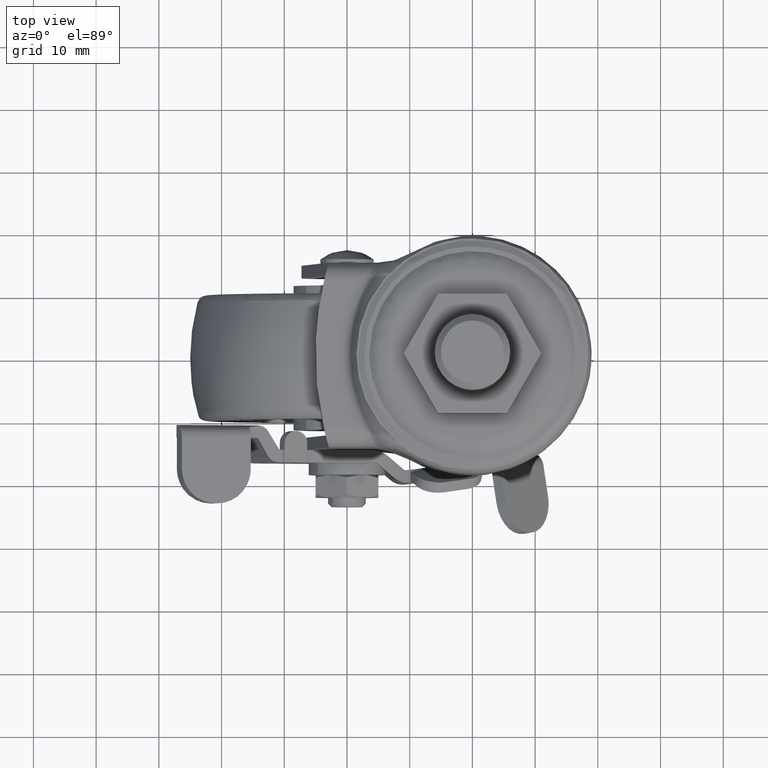
[diagram: clean part render]
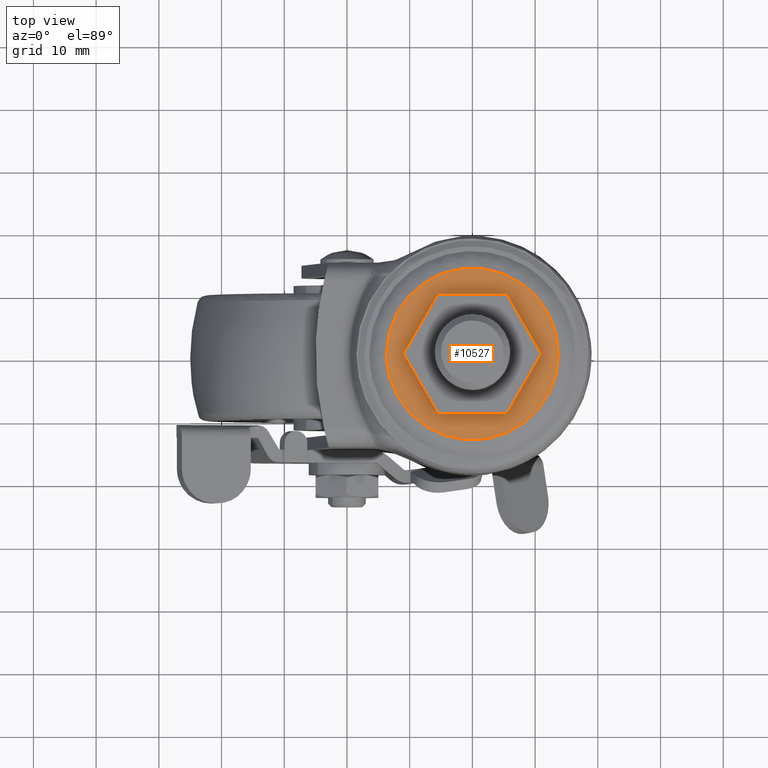
[diagram: same view with one face highlighted and labeled with its STEP entity id]
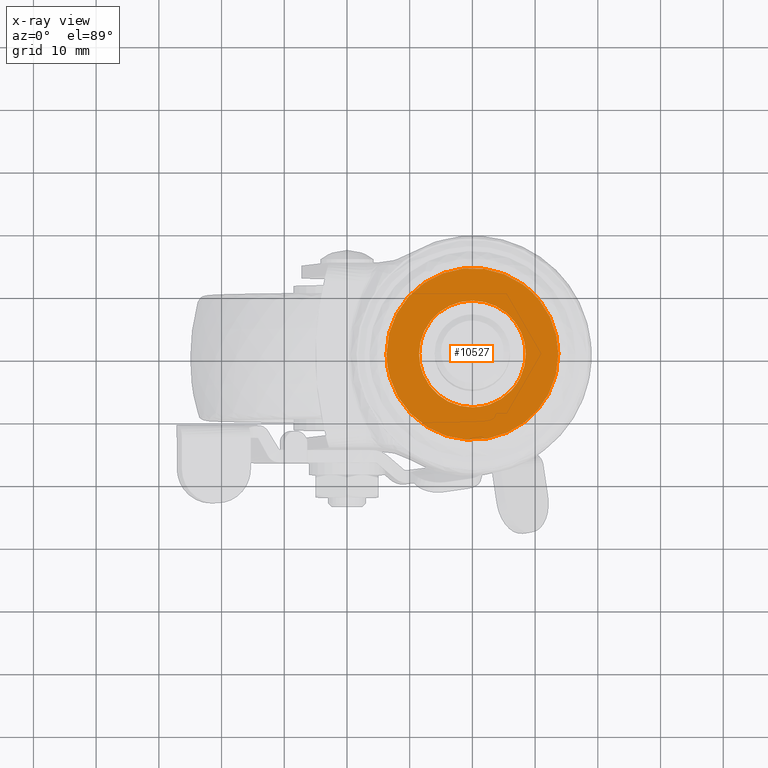
[diagram: x-ray of the same camera — body ghosted, the highlighted face saturated]
A machine part, top view. The second image highlights one B-rep face of the part: STEP entity #10527.
The next image is the same camera in x-ray: the body ghosted, the highlighted face saturated — about 0% of this face is hidden behind the body in this view.
In plain terms, the highlighted face is a freeform B-spline surface patch.
Its self-contained STEP definition (entity closure, byte-faithful):
#7740=CARTESIAN_POINT('',(6.165999531472663,-5.851315152758557,-2.946499000000000));
#7741=VERTEX_POINT('',#7740);
#7747=CARTESIAN_POINT('',(8.500438000000001,7.105427E-015,-2.946499000000000));
#7748=VERTEX_POINT('',#7747);
#7749=CARTESIAN_POINT('',(8.500438000000001,7.105427E-015,-2.946499000000000));
#7750=CARTESIAN_POINT('',(8.500637255482674,-0.705897526954933,-2.946499000000002));
#7751=CARTESIAN_POINT('',(8.369866073452842,-1.747798999035980,-2.946498999999998));
#7752=CARTESIAN_POINT('',(7.930261801105478,-3.127356619735301,-2.946498999999999));
#7753=CARTESIAN_POINT('',(7.314588726720277,-4.439093920839405,-2.946499000000014));
#7754=CARTESIAN_POINT('',(6.652013696097024,-5.339387293477970,-2.946498999999989));
#7755=CARTESIAN_POINT('',(6.165999531472663,-5.851315152758557,-2.946499000000000));
#7756=B_SPLINE_CURVE_WITH_KNOTS('',3,(#7749,#7750,#7751,#7752,#7753,#7754,#7755),.UNSPECIFIED.,.F.,.U.,(4,1,1,1,4),(0.000000017177110,2.117633623088662,3.126032876363658,4.336091582633049,6.453725188525476),.UNSPECIFIED.);
#7757=EDGE_CURVE('',#7748,#7741,#7756,.T.);
#7759=CARTESIAN_POINT('',(0.000001638118723,8.500437999999850,-2.946499000000000));
#7760=VERTEX_POINT('',#7759);
#7761=CARTESIAN_POINT('',(0.000001638118723,8.500437999999850,-2.946499000000000));
#7762=CARTESIAN_POINT('',(0.521574573834319,8.500475483066060,-2.946499000000003));
#7763=CARTESIAN_POINT('',(1.703846765982191,8.391374448757761,-2.946498999999993));
#7764=CARTESIAN_POINT('',(3.241971846309213,7.914469712641302,-2.946499000000015));
#7765=CARTESIAN_POINT('',(4.779497886139889,7.092649587877607,-2.946498999999976));
#7766=CARTESIAN_POINT('',(5.894605088073320,6.188937195912354,-2.946499000000037));
#7767=CARTESIAN_POINT('',(6.759189405011349,5.186412152570495,-2.946499000000018));
#7768=CARTESIAN_POINT('',(7.364484145993428,4.292488457749730,-2.946498999999982));
#7769=CARTESIAN_POINT('',(7.960269502624037,3.109055233604739,-2.946499000000008));
#7770=CARTESIAN_POINT('',(8.397766951483082,1.634279933883727,-2.946498999999994));
#7771=CARTESIAN_POINT('',(8.500474620726481,0.521571923156671,-2.946499000000010));
#7772=CARTESIAN_POINT('',(8.500438000000001,7.105427E-015,-2.946499000000000));
#7773=B_SPLINE_CURVE_WITH_KNOTS('',3,(#7761,#7762,#7763,#7764,#7765,#7766,#7767,#7768,#7769,#7770,#7771,#7772),.UNSPECIFIED.,.F.,.U.,(4,1,1,1,1,1,1,1,1,4),(0.000000044881480,1.564737060405157,3.546769486590440,4.798585140466651,6.780574620338281,7.823747065784298,8.762599962333955,10.014404748885580,11.787810377817220,13.352539644270630),.UNSPECIFIED.);
#7774=EDGE_CURVE('',#7760,#7748,#7773,.T.);
#7776=CARTESIAN_POINT('',(-8.500438000000001,7.105427E-015,-2.946499000000000));
#7777=VERTEX_POINT('',#7776);
#7778=CARTESIAN_POINT('',(-8.500438000000001,7.105427E-015,-2.946499000000000));
#7779=CARTESIAN_POINT('',(-8.500496987922556,0.521579836591189,-2.946498999999999));
#7780=CARTESIAN_POINT('',(-8.416950668353342,1.425629153216041,-2.946499000000004));
#7781=CARTESIAN_POINT('',(-8.069951509082541,2.775811179976055,-2.946498999999998));
#7782=CARTESIAN_POINT('',(-7.561180895944290,3.962677494979401,-2.946498999999994));
#7783=CARTESIAN_POINT('',(-6.721831787319610,5.288303195688993,-2.946498999999998));
#7784=CARTESIAN_POINT('',(-5.714559003906301,6.359413274357056,-2.946499000000014));
#7785=CARTESIAN_POINT('',(-4.477189160078833,7.265226183667427,-2.946498999999971));
#7786=CARTESIAN_POINT('',(-3.176097186580937,7.940390675317477,-2.946499000000022));
#7787=CARTESIAN_POINT('',(-1.634274745078778,8.397763438566951,-2.946498999999997));
#7788=CARTESIAN_POINT('',(-0.521571607455078,8.500474982664164,-2.946498999999994));
#7789=CARTESIAN_POINT('',(0.000001638118723,8.500437999999850,-2.946499000000000));
#7790=B_SPLINE_CURVE_WITH_KNOTS('',3,(#7778,#7779,#7780,#7781,#7782,#7783,#7784,#7785,#7786,#7787,#7788,#7789),.UNSPECIFIED.,.F.,.U.,(4,1,1,1,1,1,1,1,1,4),(0.000000044316083,1.564737276448232,2.712231084192402,4.172678058075595,5.424474506364858,7.406460124043386,8.553962330607057,10.014406133996181,11.787812008121680,13.352541490823761),.UNSPECIFIED.);
#7791=EDGE_CURVE('',#7777,#7760,#7790,.T.);
#7793=CARTESIAN_POINT('',(-5.489090375119704,-6.490557750404525,-2.946499000000000));
#7794=VERTEX_POINT('',#7793);
#7795=CARTESIAN_POINT('',(-5.489090375119704,-6.490557750404525,-2.946499000000000));
#7796=CARTESIAN_POINT('',(-5.988488397729852,-6.068413541507383,-2.946498999999998));
#7797=CARTESIAN_POINT('',(-6.703531567503106,-5.305730908183448,-2.946499000000007));
#7798=CARTESIAN_POINT('',(-7.473456506196100,-4.104879168092634,-2.946498999999991));
#7799=CARTESIAN_POINT('',(-8.008943385081778,-2.950799443938951,-2.946499000000010));
#7800=CARTESIAN_POINT('',(-8.401422525532142,-1.577032249644006,-2.946499000000000));
#7801=CARTESIAN_POINT('',(-8.500502163785869,-0.538506680679555,-2.946498999999991));
#7802=CARTESIAN_POINT('',(-8.500438000000001,7.105427E-015,-2.946499000000000));
#7803=B_SPLINE_CURVE_WITH_KNOTS('',3,(#7795,#7796,#7797,#7798,#7799,#7800,#7801,#7802),.UNSPECIFIED.,.F.,.U.,(4,1,1,1,1,4),(9.086538E-009,1.961708836796910,3.115660316443328,4.269590960747673,5.769730435377028,7.385251268118976),.UNSPECIFIED.);
#7804=EDGE_CURVE('',#7794,#7777,#7803,.T.);
#7841=CARTESIAN_POINT('',(-0.000001638118527,-8.500437999999837,-2.946499000000000));
#7842=VERTEX_POINT('',#7841);
#7843=CARTESIAN_POINT('',(-0.000001638118527,-8.500437999999837,-2.946499000000000));
#7844=CARTESIAN_POINT('',(-0.714850853973218,-8.500629135630520,-2.946499000000003));
#7845=CARTESIAN_POINT('',(-1.864687132108010,-8.354501062711503,-2.946498999999994));
#7846=CARTESIAN_POINT('',(-3.221614306971658,-7.891058856789379,-2.946499000000006));
#7847=CARTESIAN_POINT('',(-4.367516652214018,-7.330157651333250,-2.946499000000002));
#7848=CARTESIAN_POINT('',(-5.061980887112542,-6.851875504191173,-2.946498999999977));
#7849=CARTESIAN_POINT('',(-5.489090375119704,-6.490557750404525,-2.946499000000000));
#7850=B_SPLINE_CURVE_WITH_KNOTS('',3,(#7843,#7844,#7845,#7846,#7847,#7848,#7849),.UNSPECIFIED.,.F.,.U.,(4,1,1,1,4),(0.000000016833683,2.144496410949318,3.449836057129923,4.288989663213622,5.967290812346044),.UNSPECIFIED.);
#7851=EDGE_CURVE('',#7842,#7794,#7850,.T.);
#7853=CARTESIAN_POINT('',(6.165999531472663,-5.851315152758557,-2.946499000000000));
#7854=CARTESIAN_POINT('',(5.844490798772523,-6.190164166609602,-2.946499000000002));
#7855=CARTESIAN_POINT('',(5.118524606888705,-6.838678346152932,-2.946499000000000));
#7856=CARTESIAN_POINT('',(3.925072089345389,-7.583564100967803,-2.946498999999996));
#7857=CARTESIAN_POINT('',(2.660161984346344,-8.108076240698139,-2.946499000000010));
#7858=CARTESIAN_POINT('',(1.365372250973292,-8.426210949287430,-2.946498999999994));
#7859=CARTESIAN_POINT('',(0.467104346211416,-8.500473224152660,-2.946499000000000));
#7860=CARTESIAN_POINT('',(-0.000001638118527,-8.500437999999837,-2.946499000000000));
#7861=B_SPLINE_CURVE_WITH_KNOTS('',3,(#7853,#7854,#7855,#7856,#7857,#7858,#7859,#7860),.UNSPECIFIED.,.F.,.U.,(4,1,1,1,1,4),(0.000000014653852,1.401319363654944,2.910452852634167,4.203955690851986,5.497497626091982,6.898816975101652),.UNSPECIFIED.);
#7862=EDGE_CURVE('',#7741,#7842,#7861,.T.);
#9681=CARTESIAN_POINT('',(8.464957228601669,-10.772508519636171,-2.946498999999994));
#9682=VERTEX_POINT('',#9681);
#9683=CARTESIAN_POINT('',(-13.700453990673701,7.105427E-015,-2.946499000000000));
#9684=VERTEX_POINT('',#9683);
#9685=CARTESIAN_POINT('',(8.464957228601669,-10.772508519636171,-2.946498999999994));
#9686=CARTESIAN_POINT('',(7.837497732334540,-11.265654324905800,-2.946498999999998));
#9687=CARTESIAN_POINT('',(6.529590628968938,-12.119891160756220,-2.946498999999990));
#9688=CARTESIAN_POINT('',(4.728868575131854,-12.898818872397340,-2.946498999999996));
#9689=CARTESIAN_POINT('',(2.887187032037129,-13.431535196892430,-2.946498999999990));
#9690=CARTESIAN_POINT('',(1.146497185954291,-13.703289613825961,-2.946499000000037));
#9691=CARTESIAN_POINT('',(-0.852905482653804,-13.715925437338750,-2.946498999999957));
#9692=CARTESIAN_POINT('',(-2.558613078189637,-13.494467942425629,-2.946499000000049));
#9693=CARTESIAN_POINT('',(-4.493703015768057,-12.997494900708499,-2.946498999999990));
#9694=CARTESIAN_POINT('',(-6.302928982435126,-12.232659114718039,-2.946499000000026));
#9695=CARTESIAN_POINT('',(-7.961335484943823,-11.189070372989370,-2.946499000000006));
#9696=CARTESIAN_POINT('',(-9.266752867600321,-10.134395309092810,-2.946498999999970));
#9697=CARTESIAN_POINT('',(-10.467827708147450,-8.903874867080448,-2.946499000000110));
#9698=CARTESIAN_POINT('',(-11.468196826716500,-7.554154936990987,-2.946498999999974));
#9699=CARTESIAN_POINT('',(-12.321577512038070,-6.063310806327307,-2.946499000000011));
#9700=CARTESIAN_POINT('',(-13.057084041292820,-4.333127604493812,-2.946498999999980));
#9701=CARTESIAN_POINT('',(-13.580981546337251,-2.234552083076874,-2.946499000000056));
#9702=CARTESIAN_POINT('',(-13.700490521221621,-0.718249190196864,-2.946498999999935));
#9703=CARTESIAN_POINT('',(-13.700453990673701,7.105427E-015,-2.946499000000000));
#9704=B_SPLINE_CURVE_WITH_KNOTS('',3,(#9685,#9686,#9687,#9688,#9689,#9690,#9691,#9692,#9693,#9694,#9695,#9696,#9697,#9698,#9699,#9700,#9701,#9702,#9703),.UNSPECIFIED.,.F.,.U.,(4,1,1,1,1,1,1,1,1,1,1,1,1,1,1,1,4),(0.000000091273304,2.394173396694889,4.668640083726334,5.865730736223267,8.140202939755550,9.935837722631430,11.851192956676529,13.287717310943860,15.921243142761780,17.716871129603231,19.153392490814440,20.949039411967330,22.864388524693279,24.181195496352640,26.096532353988430,28.490711913039711,30.645464372091539),.UNSPECIFIED.);
#9705=EDGE_CURVE('',#9682,#9684,#9704,.T.);
#9707=CARTESIAN_POINT('',(10.772508509826491,8.464957220205434,-2.946498999999993));
#9708=VERTEX_POINT('',#9707);
#9709=CARTESIAN_POINT('',(-13.700453990673701,7.105427E-015,-2.946499000000000));
#9710=CARTESIAN_POINT('',(-13.700552150267800,0.883239196639506,-2.946499000000003));
#9711=CARTESIAN_POINT('',(-13.571887540797110,2.208046654765397,-2.946498999999995));
#9712=CARTESIAN_POINT('',(-13.074372628720770,4.225666313039784,-2.946499000000006));
#9713=CARTESIAN_POINT('',(-12.397406948405850,5.959260642977218,-2.946498999999993));
#9714=CARTESIAN_POINT('',(-11.239362441645021,7.949353080451909,-2.946499000000003));
#9715=CARTESIAN_POINT('',(-9.731216479101979,9.753603451804079,-2.946499000000002));
#9716=CARTESIAN_POINT('',(-7.988674618501491,11.194035965209700,-2.946499000000001));
#9717=CARTESIAN_POINT('',(-6.016223667463766,12.378924990709120,-2.946499000000003));
#9718=CARTESIAN_POINT('',(-4.158645768918126,13.113390700638121,-2.946498999999992));
#9719=CARTESIAN_POINT('',(-2.044691957882213,13.590055982306350,-2.946499000000025));
#9720=CARTESIAN_POINT('',(-0.278852578915207,13.743036320300060,-2.946498999999935));
#9721=CARTESIAN_POINT('',(1.708932196822949,13.635992725302680,-2.946499000000125));
#9722=CARTESIAN_POINT('',(3.449093519474465,13.302800663826149,-2.946498999999945));
#9723=CARTESIAN_POINT('',(5.126178195754147,12.738491038696051,-2.946499000000009));
#9724=CARTESIAN_POINT('',(6.686631483315690,12.002704134739551,-2.946498999999978));
#9725=CARTESIAN_POINT('',(8.698220586916950,10.710173598237599,-2.946499000000046));
#9726=CARTESIAN_POINT('',(10.036077072932271,9.402793581986487,-2.946498999999938));
#9727=CARTESIAN_POINT('',(10.772508509826491,8.464957220205434,-2.946498999999993));
#9728=B_SPLINE_CURVE_WITH_KNOTS('',3,(#9709,#9710,#9711,#9712,#9713,#9714,#9715,#9716,#9717,#9718,#9719,#9720,#9721,#9722,#9723,#9724,#9725,#9726,#9727),.UNSPECIFIED.,.F.,.U.,(4,1,1,1,1,1,1,1,1,1,1,1,1,1,1,1,4),(0.000000038748297,2.649702352178412,3.974571322209524,6.226866283728423,8.214183981525430,10.863926351902190,13.248691128021431,14.971035745101000,17.753190030809488,19.210561601824171,21.462864639073860,23.052694435665241,25.172500263251852,26.762346154464488,28.352209124095740,30.339502751085249,33.916633697267009),.UNSPECIFIED.);
#9729=EDGE_CURVE('',#9684,#9708,#9728,.T.);
#9823=CARTESIAN_POINT('',(13.700453990673701,7.105427E-015,-2.946499000000000));
#9824=VERTEX_POINT('',#9823);
#9825=CARTESIAN_POINT('',(13.700453990673701,7.105427E-015,-2.946499000000000));
#9826=CARTESIAN_POINT('',(13.700587951138040,-0.903878499086082,-2.946499000000001));
#9827=CARTESIAN_POINT('',(13.562549596853870,-2.291903207339681,-2.946498999999988));
#9828=CARTESIAN_POINT('',(13.008717462960011,-4.452575504883082,-2.946499000000000));
#9829=CARTESIAN_POINT('',(12.133861568575441,-6.546376192688617,-2.946499000000009));
#9830=CARTESIAN_POINT('',(10.598644262204470,-8.837988791288948,-2.946498999999981));
#9831=CARTESIAN_POINT('',(9.226526593993683,-10.174270261111490,-2.946499000000027));
#9832=CARTESIAN_POINT('',(8.464957228601669,-10.772508519636171,-2.946498999999994));
#9833=B_SPLINE_CURVE_WITH_KNOTS('',3,(#9825,#9826,#9827,#9828,#9829,#9830,#9831,#9832),.UNSPECIFIED.,.F.,.U.,(4,1,1,1,1,4),(0.000000022766830,2.711603470523800,4.164257366748011,6.682153658352319,9.490615321280085,12.395904551894100),.UNSPECIFIED.);
#9834=EDGE_CURVE('',#9824,#9682,#9833,.T.);
#9862=CARTESIAN_POINT('',(10.772508509826491,8.464957220205434,-2.946498999999993));
#9863=CARTESIAN_POINT('',(11.271748799634530,7.829740089618257,-2.946498999999993));
#9864=CARTESIAN_POINT('',(12.183398538926520,6.430668509053544,-2.946498999999998));
#9865=CARTESIAN_POINT('',(13.047670226884740,4.360366620345547,-2.946498999999999));
#9866=CARTESIAN_POINT('',(13.578157846978611,2.186111663622463,-2.946499000000002));
#9867=CARTESIAN_POINT('',(13.700534206349261,0.807925328187571,-2.946498999999998));
#9868=CARTESIAN_POINT('',(13.700453990673701,7.105427E-015,-2.946499000000000));
#9869=B_SPLINE_CURVE_WITH_KNOTS('',3,(#9862,#9863,#9864,#9865,#9866,#9867,#9868),.UNSPECIFIED.,.F.,.U.,(4,1,1,1,4),(6.425081E-009,2.423771273672907,4.990108449207807,6.701013980933806,9.124785248181505),.UNSPECIFIED.);
#9870=EDGE_CURVE('',#9708,#9824,#9869,.T.);
#10508=CARTESIAN_POINT('',(15.069129034013610,-15.068950458076500,-2.946499000000000));
#10509=CARTESIAN_POINT('',(-15.069130013946440,-15.068950458076500,-2.946499000000000));
#10510=CARTESIAN_POINT('',(15.069129034013610,15.069068597742170,-2.946499000000000));
#10511=CARTESIAN_POINT('',(-15.069130013946440,15.069068597742170,-2.946499000000000));
#10512=B_SPLINE_SURFACE_WITH_KNOTS('',1,1,((#10508,#10510),(#10509,#10511)),.UNSPECIFIED.,.F.,.F.,.U.,(2,2),(2,2),(0.0,30.138259047960041),(0.0,30.138019055818660),.UNSPECIFIED.);
#10513=ORIENTED_EDGE('',*,*,#9705,.F.);
#10514=ORIENTED_EDGE('',*,*,#9834,.F.);
#10515=ORIENTED_EDGE('',*,*,#9870,.F.);
#10516=ORIENTED_EDGE('',*,*,#9729,.F.);
#10517=EDGE_LOOP('',(#10513,#10514,#10515,#10516));
#10518=FACE_OUTER_BOUND('',#10517,.T.);
#10519=ORIENTED_EDGE('',*,*,#7791,.T.);
#10520=ORIENTED_EDGE('',*,*,#7774,.T.);
#10521=ORIENTED_EDGE('',*,*,#7757,.T.);
#10522=ORIENTED_EDGE('',*,*,#7862,.T.);
#10523=ORIENTED_EDGE('',*,*,#7851,.T.);
#10524=ORIENTED_EDGE('',*,*,#7804,.T.);
#10525=EDGE_LOOP('',(#10519,#10520,#10521,#10522,#10523,#10524));
#10526=FACE_BOUND('',#10525,.T.);
#10527=ADVANCED_FACE('',(#10518,#10526),#10512,.F.);